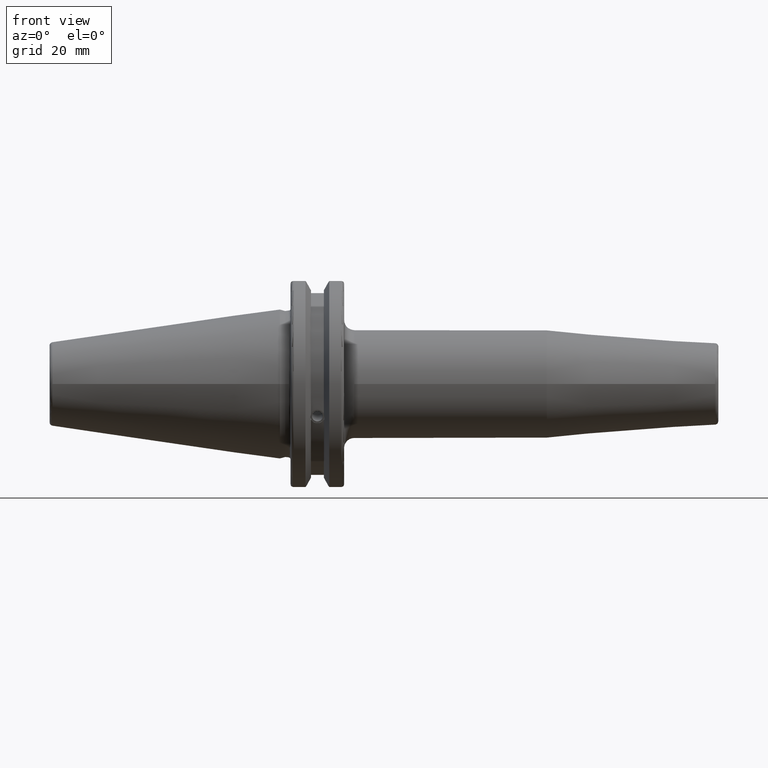
[diagram: clean part render]
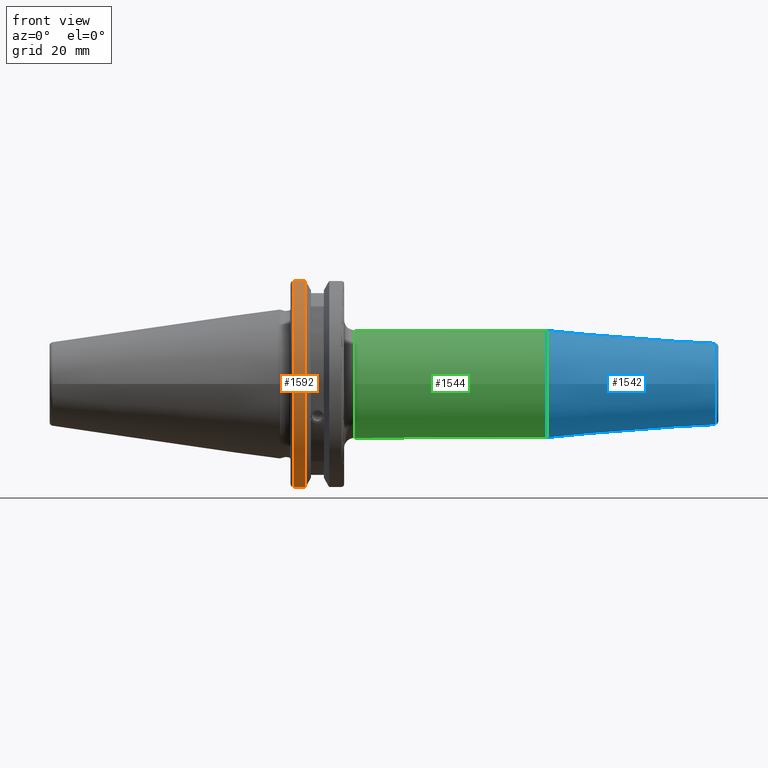
[diagram: same view with three faces highlighted in distinct colors, each labeled with its STEP entity id]
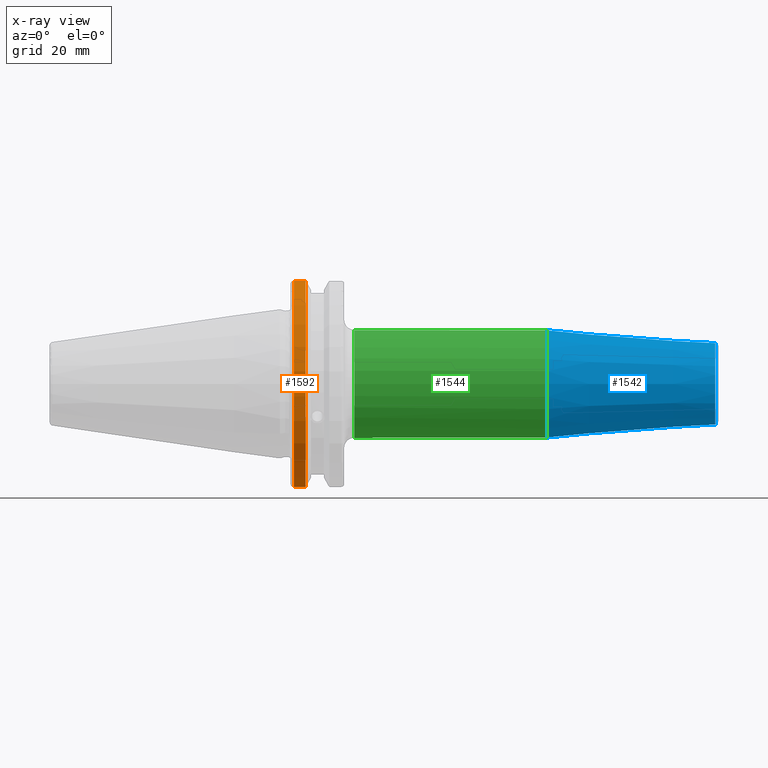
[diagram: x-ray of the same camera — body ghosted, the three highlighted faces saturated]
A machine part, front view with three faces highlighted in distinct colors.
The next image is the same camera in x-ray (body ghosted, the three faces saturated) — at least one of them is partly hidden behind the body in this view.
Their STEP definitions:

[orange] entity #1592 — the highlighted cylindrical surface (partial cylindrical patch) has radius 31.75 mm, axis along (1, 0, 0).
#167=CYLINDRICAL_SURFACE('',#1782,31.75);
#231=FACE_OUTER_BOUND('',#337,.T.);
#337=EDGE_LOOP('',(#1364,#1365,#1366,#1367));
#450=LINE('',#2971,#548);
#451=LINE('',#2977,#549);
#548=VECTOR('',#2177,10.);
#549=VECTOR('',#2180,10.);
#626=CIRCLE('',#1780,31.75);
#627=CIRCLE('',#1783,31.75);
#782=VERTEX_POINT('',#2950);
#783=VERTEX_POINT('',#2959);
#784=VERTEX_POINT('',#2970);
#785=VERTEX_POINT('',#2976);
#992=EDGE_CURVE('',#782,#783,#626,.T.);
#994=EDGE_CURVE('',#783,#784,#450,.T.);
#996=EDGE_CURVE('',#785,#782,#451,.T.);
#997=EDGE_CURVE('',#784,#785,#627,.T.);
#1364=ORIENTED_EDGE('',*,*,#992,.F.);
#1365=ORIENTED_EDGE('',*,*,#996,.F.);
#1366=ORIENTED_EDGE('',*,*,#997,.F.);
#1367=ORIENTED_EDGE('',*,*,#994,.F.);
#1592=ADVANCED_FACE('',(#231),#167,.T.);
#1780=AXIS2_PLACEMENT_3D('',#2960,#2173,#2174);
#1782=AXIS2_PLACEMENT_3D('',#2975,#2178,#2179);
#1783=AXIS2_PLACEMENT_3D('',#2978,#2181,#2182);
#2173=DIRECTION('center_axis',(-1.,0.,0.));
#2174=DIRECTION('ref_axis',(0.,-1.,1.60812264967664E-16));
#2177=DIRECTION('',(1.,0.,0.));
#2178=DIRECTION('center_axis',(1.,0.,0.));
#2179=DIRECTION('ref_axis',(0.,-1.,1.22464679914735E-16));
#2180=DIRECTION('',(-1.,0.,0.));
#2181=DIRECTION('center_axis',(1.,0.,0.));
#2182=DIRECTION('ref_axis',(0.,0.,-1.));
#2950=CARTESIAN_POINT('',(4.175,-8.67204822802685,-30.5427254764662));
#2959=CARTESIAN_POINT('',(4.175,-8.67204822802685,30.5427254764662));
#2960=CARTESIAN_POINT('Origin',(4.175,0.,0.));
#2970=CARTESIAN_POINT('',(7.60793323092436,-8.67204822802685,30.5427254764662));
#2971=CARTESIAN_POINT('',(5.39146661546218,-8.67204822802685,30.5427254764662));
#2975=CARTESIAN_POINT('Origin',(5.39146661546218,0.,0.));
#2976=CARTESIAN_POINT('',(7.60793323092436,-8.67204822802685,-30.5427254764662));
#2977=CARTESIAN_POINT('',(5.39146661546218,-8.67204822802685,-30.5427254764662));
#2978=CARTESIAN_POINT('Origin',(7.60793323092436,0.,0.));

[blue] entity #1542 — the highlighted conical surface has half-angle 4.5 deg.
#181=FACE_OUTER_BOUND('',#275,.T.);
#275=EDGE_LOOP('',(#1066,#1067,#1068,#1069,#1070));
#379=LINE('',#2340,#477);
#477=VECTOR('',#1874,14.);
#575=CIRCLE('',#1661,12.0725268420749);
#576=CIRCLE('',#1662,12.0725268420749);
#578=CIRCLE('',#1666,16.);
#653=VERTEX_POINT('',#2330);
#654=VERTEX_POINT('',#2332);
#656=VERTEX_POINT('',#2339);
#814=EDGE_CURVE('',#653,#654,#575,.T.);
#815=EDGE_CURVE('',#654,#653,#576,.T.);
#817=EDGE_CURVE('',#654,#656,#379,.T.);
#818=EDGE_CURVE('',#656,#656,#578,.T.);
#1066=ORIENTED_EDGE('',*,*,#815,.F.);
#1067=ORIENTED_EDGE('',*,*,#817,.T.);
#1068=ORIENTED_EDGE('',*,*,#818,.T.);
#1069=ORIENTED_EDGE('',*,*,#817,.F.);
#1070=ORIENTED_EDGE('',*,*,#814,.F.);
#1523=CONICAL_SURFACE('',#1665,14.,0.0785398163397448);
#1542=ADVANCED_FACE('',(#181),#1523,.T.);
#1661=AXIS2_PLACEMENT_3D('',#2333,#1864,#1865);
#1662=AXIS2_PLACEMENT_3D('',#2334,#1866,#1867);
#1665=AXIS2_PLACEMENT_3D('',#2338,#1872,#1873);
#1666=AXIS2_PLACEMENT_3D('',#2341,#1875,#1876);
#1864=DIRECTION('center_axis',(1.,0.,0.));
#1865=DIRECTION('ref_axis',(0.,-1.,3.06161699786838E-17));
#1866=DIRECTION('center_axis',(1.,0.,0.));
#1867=DIRECTION('ref_axis',(0.,-1.,3.06161699786838E-17));
#1872=DIRECTION('center_axis',(-1.,0.,0.));
#1873=DIRECTION('ref_axis',(0.,1.,0.));
#1874=DIRECTION('',(-0.996917333733128,-0.078459095727845,-9.60846804471011E-18));
#1875=DIRECTION('center_axis',(1.,0.,0.));
#1876=DIRECTION('ref_axis',(0.,0.,-1.));
#2330=CARTESIAN_POINT('',(129.078459095728,-1.47845813547676E-15,12.0725268420749));
#2332=CARTESIAN_POINT('',(129.078459095728,-12.0725268420749,-1.47845813547676E-15));
#2333=CARTESIAN_POINT('Origin',(129.078459095728,0.,-1.84807266934594E-15));
#2334=CARTESIAN_POINT('Origin',(129.078459095728,0.,-1.84807266934594E-15));
#2338=CARTESIAN_POINT('Origin',(104.587590527651,0.,0.));
#2339=CARTESIAN_POINT('',(79.1751810553012,-16.,-1.95943487863577E-15));
#2340=CARTESIAN_POINT('',(104.587590527651,-14.,-1.71450551880629E-15));
#2341=CARTESIAN_POINT('Origin',(79.1751810553012,0.,0.));

[green] entity #1544 — the highlighted cylindrical surface (bore or boss wall) has radius 16 mm, axis along (1, 0, 0).
#146=CYLINDRICAL_SURFACE('',#1672,16.);
#183=FACE_OUTER_BOUND('',#277,.T.);
#277=EDGE_LOOP('',(#1076,#1077,#1078,#1079,#1080));
#380=LINE('',#2351,#478);
#478=VECTOR('',#1889,16.);
#578=CIRCLE('',#1666,16.);
#579=CIRCLE('',#1668,16.);
#582=CIRCLE('',#1671,16.);
#656=VERTEX_POINT('',#2339);
#657=VERTEX_POINT('',#2343);
#658=VERTEX_POINT('',#2344);
#818=EDGE_CURVE('',#656,#656,#578,.T.);
#819=EDGE_CURVE('',#657,#658,#579,.T.);
#822=EDGE_CURVE('',#658,#657,#582,.T.);
#823=EDGE_CURVE('',#656,#657,#380,.T.);
#1076=ORIENTED_EDGE('',*,*,#818,.F.);
#1077=ORIENTED_EDGE('',*,*,#823,.T.);
#1078=ORIENTED_EDGE('',*,*,#822,.F.);
#1079=ORIENTED_EDGE('',*,*,#819,.F.);
#1080=ORIENTED_EDGE('',*,*,#823,.F.);
#1544=ADVANCED_FACE('',(#183),#146,.T.);
#1666=AXIS2_PLACEMENT_3D('',#2341,#1875,#1876);
#1668=AXIS2_PLACEMENT_3D('',#2345,#1879,#1880);
#1671=AXIS2_PLACEMENT_3D('',#2349,#1885,#1886);
#1672=AXIS2_PLACEMENT_3D('',#2350,#1887,#1888);
#1875=DIRECTION('center_axis',(1.,0.,0.));
#1876=DIRECTION('ref_axis',(0.,0.,-1.));
#1879=DIRECTION('center_axis',(-1.,0.,0.));
#1880=DIRECTION('ref_axis',(0.,-1.,-1.22464679914735E-16));
#1885=DIRECTION('center_axis',(-1.,0.,0.));
#1886=DIRECTION('ref_axis',(0.,-1.,-1.22464679914735E-16));
#1887=DIRECTION('center_axis',(1.,0.,0.));
#1888=DIRECTION('ref_axis',(0.,1.,0.));
#1889=DIRECTION('',(-1.,0.,0.));
#2339=CARTESIAN_POINT('',(79.1751810553012,-16.,-1.95943487863577E-15));
#2341=CARTESIAN_POINT('Origin',(79.1751810553012,0.,0.));
#2343=CARTESIAN_POINT('',(22.05,-16.,-1.95943487863577E-15));
#2344=CARTESIAN_POINT('',(22.05,-1.95943487863577E-15,-16.));
#2345=CARTESIAN_POINT('Origin',(22.05,0.,0.));
#2349=CARTESIAN_POINT('Origin',(22.05,0.,0.));
#2350=CARTESIAN_POINT('Origin',(49.1125905276506,0.,0.));
#2351=CARTESIAN_POINT('',(49.1125905276506,-16.,-1.95943487863577E-15));